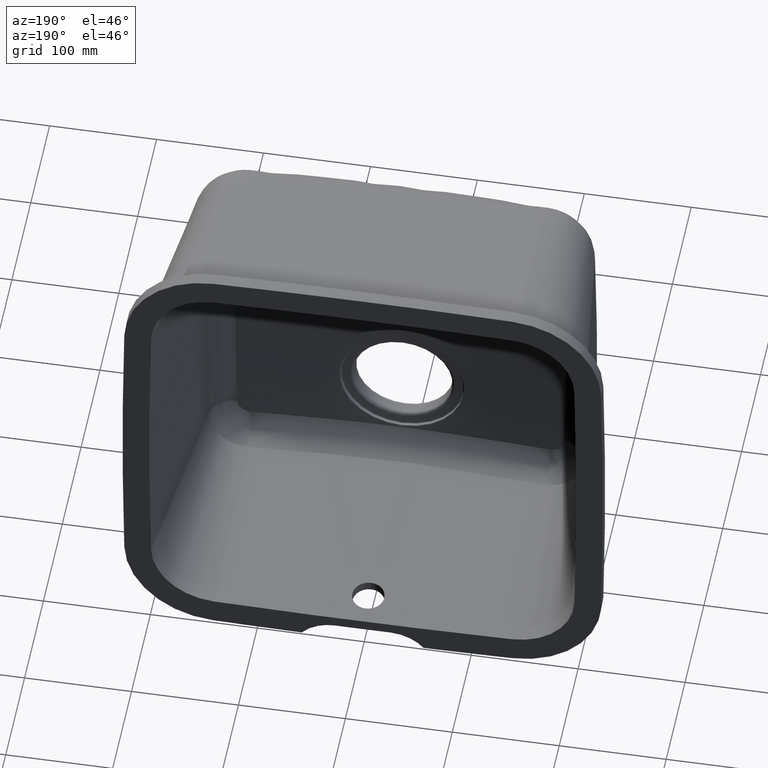
[diagram: clean part render]
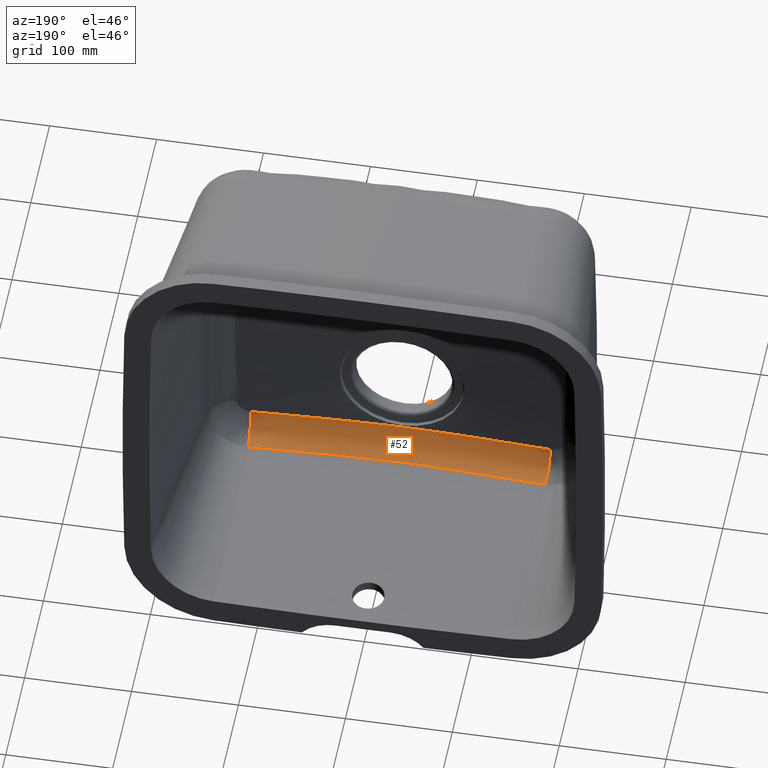
[diagram: same view with one face highlighted and labeled with its STEP entity id]
A machine part, auxiliary view. The second image highlights one B-rep face of the part: STEP entity #52.
In plain terms, the highlighted face is a freeform B-spline surface patch.
Its self-contained STEP definition (entity closure, byte-faithful):
#19 = VERTEX_POINT ( 'NONE', #4301 ) ;
#52 = ADVANCED_FACE ( 'NONE', ( #2300 ), #1901, .F. ) ;
#95 = CARTESIAN_POINT ( 'NONE',  ( -40.83867986021988400, 1.011560829505850200, -153.2749280901548200 ) ) ;
#150 = CARTESIAN_POINT ( 'NONE',  ( 58.87429859057600400, 2.851861469490934100, -174.0353473288779800 ) ) ;
#158 = CARTESIAN_POINT ( 'NONE',  ( -64.14953996516371100, 2.072095009043335400, -152.9574791450795900 ) ) ;
#179 = CARTESIAN_POINT ( 'NONE',  ( 23.65419742322665500, 1.800841630182062400, -174.1398169175155600 ) ) ;
#189 = CARTESIAN_POINT ( 'NONE',  ( -47.25581188564600400, 1.276385992272396400, -153.1891069049507300 ) ) ;
#221 = CARTESIAN_POINT ( 'NONE',  ( 138.8081677294309800, 28.44922701244927400, -175.9066235323146000 ) ) ;
#236 = CARTESIAN_POINT ( 'NONE',  ( 82.19207673572356000, 3.886600302355682300, -173.9063520723077300 ) ) ;
#270 = CARTESIAN_POINT ( 'NONE',  ( 63.63602706564612500, 23.99096099312435700, -176.5840183340366700 ) ) ;
#339 = CARTESIAN_POINT ( 'NONE',  ( -81.03360009508189400, 24.91428714242230700, -176.5033124369285800 ) ) ;
#345 = CARTESIAN_POINT ( 'NONE',  ( 28.91101728318358600, 22.51263801326729200, -176.6605840185063700 ) ) ;
#469 = CIRCLE ( 'NONE', #3248, 25.00000000000000400 ) ;
#494 = CARTESIAN_POINT ( 'NONE',  ( -127.2549304034017700, 27.71090961203639200, -176.0735500679325300 ) ) ;
#510 = CARTESIAN_POINT ( 'NONE',  ( -82.23691743632746000, 3.888882711299178800, -173.9060213529402000 ) ) ;
#523 = CARTESIAN_POINT ( 'NONE',  ( -116.8028911064075400, 5.093137889881473000, -152.1785321694588900 ) ) ;
#528 = CARTESIAN_POINT ( 'NONE',  ( 29.55712835344442300, 1.920224914698769500, -174.1292056590603200 ) ) ;
#534 = CARTESIAN_POINT ( 'NONE',  ( -92.59053483487825500, 25.58793073426490500, -176.4248818934823100 ) ) ;
#545 = CARTESIAN_POINT ( 'NONE',  ( 46.27788787088567800, 23.16550161274789600, -176.6358802995876500 ) ) ;
#552 = CARTESIAN_POINT ( 'NONE',  ( 82.09317167750298000, 3.019377097978279200, -152.7054034717391200 ) ) ;
#562 = CARTESIAN_POINT ( 'NONE',  ( 128.3282111101373200, 5.817971400511065200, -151.9850774388810400 ) ) ;
#606 = CARTESIAN_POINT ( 'NONE',  ( 127.2462298307551400, 27.71035359492195800, -176.0736757777017100 ) ) ;
#609 = ORIENTED_EDGE ( 'NONE', *, *, #1424, .F. ) ;
#617 = CARTESIAN_POINT ( 'NONE',  ( 9.186450360362218100E-016, 0.1642780061502546700, -153.5992849392729300 ) ) ;
#702 = CARTESIAN_POINT ( 'NONE',  ( 5.734494765795124000, 22.05624808998421600, -176.6690318315292200 ) ) ;
#865 = CARTESIAN_POINT ( 'NONE',  ( -117.0081312788031800, 5.773713497490291500, -173.5807801621582800 ) ) ;
#876 = CARTESIAN_POINT ( 'NONE',  ( -93.70274008600687000, 3.695563063449770300, -152.5382285401744300 ) ) ;
#891 = CARTESIAN_POINT ( 'NONE',  ( -41.40017289156658400, 2.231578803073543100, -174.0999515299112100 ) ) ;
#897 = CARTESIAN_POINT ( 'NONE',  ( 29.57475034321622300, 0.6202683076655682900, -153.4126492910388000 ) ) ;
#913 = CARTESIAN_POINT ( 'NONE',  ( 80.98940597597547300, 24.91174477004168300, -176.5035932503067800 ) ) ;
#920 = CARTESIAN_POINT ( 'NONE',  ( 128.2201855927925200, 5.811052669934937900, -151.9870932509621200 ) ) ;
#926 = CARTESIAN_POINT ( 'NONE',  ( 92.55507763745276900, 25.58582901663523400, -176.4251677539454600 ) ) ;
#997 = CARTESIAN_POINT ( 'NONE',  ( 11.53128317371742600, 22.11684405427258000, -176.6684359801439800 ) ) ;
#1021 = CARTESIAN_POINT ( 'NONE',  ( -115.7007552689140700, 26.98549172334475100, -176.2099165886474200 ) ) ;
#1035 = CARTESIAN_POINT ( 'NONE',  ( -57.91458634386840000, 23.70269254859638200, -176.6044680416658800 ) ) ;
#1105 = ORIENTED_EDGE ( 'NONE', *, *, #1292, .F. ) ;
#1184 = CARTESIAN_POINT ( 'NONE',  ( -81.62738438148773000, 2.992891552951847200, -152.7120769881534300 ) ) ;
#1191 = CARTESIAN_POINT ( 'NONE',  ( 47.18037689784990400, 1.273136833211360400, -153.1901204111614700 ) ) ;
#1210 = CARTESIAN_POINT ( 'NONE',  ( -47.25593131239222800, 2.421116578534597600, -174.0814842412725600 ) ) ;
#1224 = CARTESIAN_POINT ( 'NONE',  ( -29.65017364031412600, 1.922323189849676900, -174.1290152886935800 ) ) ;
#1227 = CARTESIAN_POINT ( 'NONE',  ( 46.27795614231391100, 23.16550450467685400, -176.6358801679637900 ) ) ;
#1236 = CARTESIAN_POINT ( 'NONE',  ( -29.00240170724685400, 22.51550456571116900, -176.6605057351984600 ) ) ;
#1242 = CARTESIAN_POINT ( 'NONE',  ( 47.18038420418358200, 2.418537294455840800, -174.0817455845231100 ) ) ;
#1253 = CARTESIAN_POINT ( 'NONE',  ( 93.79581100466560900, 4.489965776503519000, -173.8162281564289100 ) ) ;
#1261 = CARTESIAN_POINT ( 'NONE',  ( 81.63143327839995300, 2.993120327727915300, -152.7120190910008800 ) ) ;
#1280 = CARTESIAN_POINT ( 'NONE',  ( 23.34547167778946900, 0.4453512378437377000, -153.4812086140423700 ) ) ;
#1292 = EDGE_CURVE ( 'NONE', #2635, #19, #4205, .T. ) ;
#1395 = CARTESIAN_POINT ( 'NONE',  ( -46.35196808495348400, 23.16872482040671200, -176.6357202182796900 ) ) ;
#1398 = CARTESIAN_POINT ( 'NONE',  ( -139.8648283158147800, 6.556859341082163600, -151.7698001973026000 ) ) ;
#1424 = EDGE_CURVE ( 'NONE', #4077, #1469, #2943, .T. ) ;
#1437 = ORIENTED_EDGE ( 'NONE', *, *, #2453, .T. ) ;
#1442 = VERTEX_POINT ( 'NONE', #1398 ) ;
#1469 = VERTEX_POINT ( 'NONE', #617 ) ;
#1517 = ORIENTED_EDGE ( 'NONE', *, *, #2894, .F. ) ;
#1584 = CARTESIAN_POINT ( 'NONE',  ( -23.75357054620479500, 1.802654229112316400, -174.1396547912270600 ) ) ;
#1602 = CARTESIAN_POINT ( 'NONE',  ( 40.49022321754021200, 22.92285637727676200, -176.6464181961939100 ) ) ;
#1623 = CARTESIAN_POINT ( 'NONE',  ( 80.98926312022314300, 24.91173670893522600, -176.5035940969168000 ) ) ;
#1632 = CARTESIAN_POINT ( 'NONE',  ( 92.55494819653915800, 25.58582135690593900, -176.4251687836307700 ) ) ;
#1747 = CARTESIAN_POINT ( 'NONE',  ( -40.56961378925208800, 22.92604251875285800, -176.6462873201404600 ) ) ;
#1845 = CARTESIAN_POINT ( 'NONE',  ( -116.5724604084844300, 5.078653345951883200, -152.1823772570121500 ) ) ;
#1873 = CARTESIAN_POINT ( 'NONE',  ( -93.27659092042786400, 3.670339593163843600, -152.5445998136062500 ) ) ;
#1876 = ORIENTED_EDGE ( 'NONE', *, *, #3730, .F. ) ;
#1888 = CARTESIAN_POINT ( 'NONE',  ( -46.66746937492824500, 1.251260125438407700, -153.1969944103730100 ) ) ;
#1901 =( BOUNDED_SURFACE ( )  B_SPLINE_SURFACE ( 3, 2, ( 
 ( #3297, #4012, #2282 ),
 ( #494, #3982, #1911 ),
 ( #4343, #865, #523 ),
 ( #534, #2310, #876 ),
 ( #4329, #510, #4368 ),
 ( #2632, #1922, #2994 ),
 ( #3323, #2256, #2613 ),
 ( #3313, #1210, #189 ),
 ( #2621, #891, #3335 ),
 ( #1236, #1224, #3692 ),
 ( #3674, #1584, #1952 ),
 ( #2293, #4076, #3370 ),
 ( #2937, #2287, #2625 ),
 ( #3683, #3637, #2262 ),
 ( #3974, #3697, #4015 ),
 ( #3328, #179, #2615 ),
 ( #3666, #528, #897 ),
 ( #1602, #2984, #1944 ),
 ( #1227, #1242, #1191 ),
 ( #1961, #150, #2586 ),
 ( #2941, #2298, #2658 ),
 ( #913, #236, #552 ),
 ( #926, #1253, #2313 ),
 ( #3375, #3008, #3359 ),
 ( #2670, #4385, #562 ),
 ( #221, #3708, #3025 ) ),
 .UNSPECIFIED., .F., .F., .T. ) 
 B_SPLINE_SURFACE_WITH_KNOTS ( ( 4, 2, 2, 2, 2, 2, 2, 2, 2, 2, 2, 2, 4 ),
 ( 3, 3 ),
 ( -3.441691376337985300E-015, 0.03458634299102859200, 0.06917268598206062500, 0.08646585747757665200, 0.1037590289730926700, 0.1210522004686086800, 0.1383453719641246900, 0.1556385434596407300, 0.1729317149551567500, 0.1902248864506727600, 0.2075180579461887700, 0.2421044009372208000, 0.2766907439282528200 ),
 ( 0.0000000000000000000, 1.000000000000000000 ),
 .UNSPECIFIED. ) 
 GEOMETRIC_REPRESENTATION_ITEM ( )  RATIONAL_B_SPLINE_SURFACE ( (
 ( 1.000000000000000000, 0.7581613193618773600, 1.000000000000000000),
 ( 1.000000000000000000, 0.7587617439914943200, 1.000000000000000000),
 ( 1.000000000000000000, 0.7594761446273320400, 1.000000000000000000),
 ( 1.000000000000000000, 0.7612942553376972300, 1.000000000000000000),
 ( 1.000000000000000000, 0.7624050924904380900, 1.000000000000000000),
 ( 1.000000000000000000, 0.7644804515009976400, 1.000000000000000000),
 ( 1.000000000000000000, 0.7652407591866997600, 1.000000000000000000),
 ( 1.000000000000000000, 0.7668566985363453000, 1.000000000000000000),
 ( 1.000000000000000000, 0.7677155256353941400, 1.000000000000000000),
 ( 1.000000000000000000, 0.7693587876268325200, 1.000000000000000000),
 ( 1.000000000000000000, 0.7701406881104153600, 1.000000000000000000),
 ( 1.000000000000000000, 0.7712804987138828200, 1.000000000000000000),
 ( 1.000000000000000000, 0.7716223977765395100, 1.000000000000000000),
 ( 1.000000000000000000, 0.7716267470209057200, 1.000000000000000000),
 ( 1.000000000000000000, 0.7712887523926480500, 1.000000000000000000),
 ( 1.000000000000000000, 0.7701528391308664100, 1.000000000000000000),
 ( 1.000000000000000000, 0.7693713238027041200, 1.000000000000000000),
 ( 1.000000000000000000, 0.7677273462469430500, 1.000000000000000000),
 ( 1.000000000000000000, 0.7668674853762375000, 1.000000000000000000),
 ( 1.000000000000000000, 0.7652493982258926600, 1.000000000000000000),
 ( 1.000000000000000000, 0.7644879605349636000, 1.000000000000000000),
 ( 1.000000000000000000, 0.7624096252786002300, 1.000000000000000000),
 ( 1.000000000000000000, 0.7612973446257083100, 1.000000000000000000),
 ( 1.000000000000000000, 0.7594772165880858700, 1.000000000000000000),
 ( 1.000000000000000000, 0.7587621967233254500, 1.000000000000000000),
 ( 1.000000000000000000, 0.7581613193618770300, 1.000000000000000000) ) ) 
 REPRESENTATION_ITEM ( '' )  SURFACE ( )  );
#1911 = CARTESIAN_POINT ( 'NONE',  ( -128.3368456472353200, 5.818524419096338100, -151.9849163425002100 ) ) ;
#1922 = CARTESIAN_POINT ( 'NONE',  ( -64.76579031151165100, 3.098214439703646800, -174.0070466122735700 ) ) ;
#1944 = CARTESIAN_POINT ( 'NONE',  ( 41.32757669195524400, 1.030488705728151300, -153.2685799689907900 ) ) ;
#1952 = CARTESIAN_POINT ( 'NONE',  ( -23.77330056330961500, 0.4556384154249503700, -153.4770901610666300 ) ) ;
#1961 = CARTESIAN_POINT ( 'NONE',  ( 57.85092082273293100, 23.69955718349757500, -176.6046797411018800 ) ) ;
#1966 = CARTESIAN_POINT ( 'NONE',  ( 115.6834670457424900, 26.98440416756657000, -176.2101209004599700 ) ) ;
#1997 = CARTESIAN_POINT ( 'NONE',  ( 11.67323527396237300, 0.2229469018515394500, -153.5728233414354500 ) ) ;
#2015 = CARTESIAN_POINT ( 'NONE',  ( 138.2550340701563400, 31.49596059757795500, -151.0991355978976600 ) ) ;
#2053 = CIRCLE ( 'NONE', #4436, 25.00000000000000700 ) ;
#2079 = CARTESIAN_POINT ( 'NONE',  ( -127.2548097427278700, 27.71090189996709800, -176.0735518111507600 ) ) ;
#2093 = DIRECTION ( 'NONE',  ( 0.06402964364024431300, 0.9979479970095152000, 0.0000000000000000000 ) ) ;
#2100 = CARTESIAN_POINT ( 'NONE',  ( -11.64066362396290400, 22.11838393861080500, -176.6684155974710700 ) ) ;
#2256 = CARTESIAN_POINT ( 'NONE',  ( -58.93914355512277600, 2.854487620874623500, -174.0350510882988400 ) ) ;
#2262 = CARTESIAN_POINT ( 'NONE',  ( 5.881924463071820600, 0.1638772406873480200, -153.5994611250322900 ) ) ;
#2282 = CARTESIAN_POINT ( 'NONE',  ( -139.8648283158113100, 6.556859341081966400, -151.7698001973035100 ) ) ;
#2287 = CARTESIAN_POINT ( 'NONE',  ( -5.993723171444641700, 1.602119694415724800, -174.1574694623052200 ) ) ;
#2293 = CARTESIAN_POINT ( 'NONE',  ( -11.64125214693351200, 22.11839185290645900, -176.6684154996208100 ) ) ;
#2298 = CARTESIAN_POINT ( 'NONE',  ( 64.70605222082441800, 3.095638054153957000, -174.0073561717024400 ) ) ;
#2300 = FACE_OUTER_BOUND ( 'NONE', #3593, .T. ) ;
#2310 = CARTESIAN_POINT ( 'NONE',  ( -93.83136462013538900, 4.491869949599186300, -173.8159092414840600 ) ) ;
#2313 = CARTESIAN_POINT ( 'NONE',  ( 93.66727511842209700, 3.693461344832901400, -152.5387598624316500 ) ) ;
#2323 = CARTESIAN_POINT ( 'NONE',  ( 40.84137550176682700, 1.011662150994495000, -153.2748936519134300 ) ) ;
#2337 = CARTESIAN_POINT ( 'NONE',  ( 9.186450360362218100E-016, 0.1642780061502546700, -153.5992849392729300 ) ) ;
#2426 = CARTESIAN_POINT ( 'NONE',  ( -92.59012060684547400, 25.58790619407652000, -176.4248852201526700 ) ) ;
#2439 = CARTESIAN_POINT ( 'NONE',  ( -138.8081677294250900, 28.44922701244892600, -175.9066235323140600 ) ) ;
#2453 = EDGE_CURVE ( 'NONE', #4077, #19, #469, .T. ) ;
#2474 = DIRECTION ( 'NONE',  ( 0.9978447255611983000, -0.06402301760957565500, -0.01438599617200658400 ) ) ;
#2492 = CARTESIAN_POINT ( 'NONE',  ( -138.2550340701540100, 31.49596059757777400, -151.0991355978965500 ) ) ;
#2534 = CARTESIAN_POINT ( 'NONE',  ( -58.32289988813701600, 1.781548486462674300, -153.0383837180809500 ) ) ;
#2586 = CARTESIAN_POINT ( 'NONE',  ( 58.85140269888561400, 1.807189512229226700, -153.0310759335777400 ) ) ;
#2593 = CARTESIAN_POINT ( 'NONE',  ( -139.8648283158147800, 6.556859341082163600, -151.7698001973026000 ) ) ;
#2613 = CARTESIAN_POINT ( 'NONE',  ( -58.91611235486924900, 1.810355661595289800, -153.0301794726537400 ) ) ;
#2615 = CARTESIAN_POINT ( 'NONE',  ( 23.67391750485038000, 0.4530821259049683200, -153.4781055465402600 ) ) ;
#2621 = CARTESIAN_POINT ( 'NONE',  ( -40.57028855214546300, 22.92606939465594400, -176.6462862255855600 ) ) ;
#2625 = CARTESIAN_POINT ( 'NONE',  ( -6.002030538852941400, 0.1646828425528361300, -153.5991069638508600 ) ) ;
#2632 = CARTESIAN_POINT ( 'NONE',  ( -63.69544959692183300, 23.99401472361698100, -176.5837811560956800 ) ) ;
#2635 = VERTEX_POINT ( 'NONE', #2439 ) ;
#2658 = CARTESIAN_POINT ( 'NONE',  ( 64.66992742905432600, 2.098599726595845400, -152.9502350381845900 ) ) ;
#2670 = CARTESIAN_POINT ( 'NONE',  ( 127.2462777800396300, 27.71035665651299600, -176.0736750845840100 ) ) ;
#2676 = CARTESIAN_POINT ( 'NONE',  ( 29.17877231168551000, 0.6084489924350576800, -153.4171219386058200 ) ) ;
#2708 = CARTESIAN_POINT ( 'NONE',  ( 57.85080793332206600, 23.69955171547834600, -176.6046800978817500 ) ) ;
#2728 = DIRECTION ( 'NONE',  ( 0.9978447255611965200, 0.06402301760957175600, 0.01438599617214774000 ) ) ;
#2762 = DIRECTION ( 'NONE',  ( -0.06402964364024098200, 0.9979479970095153100, 0.0000000000000000000 ) ) ;
#2781 = CARTESIAN_POINT ( 'NONE',  ( 23.11952911827173900, 22.34545344025328400, -176.6642594534111200 ) ) ;
#2793 = CARTESIAN_POINT ( 'NONE',  ( 40.49018721758799400, 22.92285515144636000, -176.6464182357076100 ) ) ;
#2806 = CARTESIAN_POINT ( 'NONE',  ( -5.850650594381857400, 22.05704727145692300, -176.6690218920495300 ) ) ;
#2894 = EDGE_CURVE ( 'NONE', #1442, #2635, #2053, .T. ) ;
#2918 = CARTESIAN_POINT ( 'NONE',  ( -29.17776826905219400, 0.6084224066930472600, -153.4171326184181500 ) ) ;
#2934 = CARTESIAN_POINT ( 'NONE',  ( -23.34562797420990400, 0.4453646063201288100, -153.4812036718476500 ) ) ;
#2937 = CARTESIAN_POINT ( 'NONE',  ( -5.851187993905972100, 22.05705051375487400, -176.6690218516884800 ) ) ;
#2941 = CARTESIAN_POINT ( 'NONE',  ( 63.63615229988457900, 23.99096739761452200, -176.5840178459031900 ) ) ;
#2943 = B_SPLINE_CURVE_WITH_KNOTS ( 'NONE', 3,
 ( #4379, #920, #4416, #3369, #1261, #3715, #4050, #4395, #2323, #2676, #1280, #1997, #4404, #2337 ),
 .UNSPECIFIED., .F., .F.,
 ( 4, 2, 2, 2, 2, 2, 4 ),
 ( 0.0000000000000000000, 0.03500744715501236800, 0.07001489431002473600, 0.08751861788753090300, 0.1050223414650370800, 0.1225260650425432400, 0.1400297886200494200 ),
 .UNSPECIFIED. ) ;
#2984 = CARTESIAN_POINT ( 'NONE',  ( 41.31902522166471000, 2.229096799130004100, -174.1001915268505200 ) ) ;
#2994 = CARTESIAN_POINT ( 'NONE',  ( -64.72952688922880800, 2.101647052282550600, -152.9494046742805700 ) ) ;
#3008 = CARTESIAN_POINT ( 'NONE',  ( 116.9906995749459600, 5.772687190879579200, -173.5809987895390500 ) ) ;
#3025 = CARTESIAN_POINT ( 'NONE',  ( 139.8648283158171900, 6.556859341082354600, -151.7698001973040200 ) ) ;
#3136 = CARTESIAN_POINT ( 'NONE',  ( -63.69485005985438200, 23.99398393690551100, -176.5837835396679600 ) ) ;
#3248 = AXIS2_PLACEMENT_3D ( 'NONE', #2015, #2728, #2762 ) ;
#3289 = CARTESIAN_POINT ( 'NONE',  ( -138.8081677294250900, 28.44922701244892600, -175.9066235323140600 ) ) ;
#3297 = CARTESIAN_POINT ( 'NONE',  ( -138.8081677294250900, 28.44922701244888700, -175.9066235323140600 ) ) ;
#3313 = CARTESIAN_POINT ( 'NONE',  ( -46.35263248143212400, 23.16875366322598100, -176.6357187960723500 ) ) ;
#3323 = CARTESIAN_POINT ( 'NONE',  ( -57.91521312801148000, 23.70272333337554500, -176.6044659739480900 ) ) ;
#3328 = CARTESIAN_POINT ( 'NONE',  ( 23.11940758724325600, 22.34544979702469500, -176.6642595353957000 ) ) ;
#3335 = CARTESIAN_POINT ( 'NONE',  ( -41.40862988497091400, 1.033701723393452500, -153.2675141625609900 ) ) ;
#3359 = CARTESIAN_POINT ( 'NONE',  ( 116.7854936423065300, 5.092041495817384500, -152.1788239293361200 ) ) ;
#3369 = CARTESIAN_POINT ( 'NONE',  ( 93.28014952613038700, 3.670549953204786900, -152.5445467224190600 ) ) ;
#3370 = CARTESIAN_POINT ( 'NONE',  ( -11.94040196748088600, 0.2260241816780828300, -153.5714433349390300 ) ) ;
#3375 = CARTESIAN_POINT ( 'NONE',  ( 115.6835469466267500, 26.98440916674889300, -176.2101199836944000 ) ) ;
#3593 = EDGE_LOOP ( 'NONE', ( #1437, #1105, #1517, #1876, #609 ) ) ;
#3629 = CARTESIAN_POINT ( 'NONE',  ( -128.2190564754521600, 5.810980353139611600, -151.9871143206826800 ) ) ;
#3637 = CARTESIAN_POINT ( 'NONE',  ( 5.873750223620342000, 1.601579024251667400, -174.1575173646898500 ) ) ;
#3666 = CARTESIAN_POINT ( 'NONE',  ( 28.91095845932632700, 22.51263597885079500, -176.6605840859423900 ) ) ;
#3674 = CARTESIAN_POINT ( 'NONE',  ( -23.21684286916746100, 22.34800608693041500, -176.6642048813012600 ) ) ;
#3683 = CARTESIAN_POINT ( 'NONE',  ( 5.734100417641007800, 22.05624491221915000, -176.6690318710885800 ) ) ;
#3692 = CARTESIAN_POINT ( 'NONE',  ( -29.66777335076916700, 0.6231368942398191100, -153.4115801601758400 ) ) ;
#3697 = CARTESIAN_POINT ( 'NONE',  ( 11.81561805572540400, 1.641668540766277000, -174.1539828823834200 ) ) ;
#3708 = CARTESIAN_POINT ( 'NONE',  ( 140.1364672610926000, 7.152348206731600700, -173.2614285303121200 ) ) ;
#3715 = CARTESIAN_POINT ( 'NONE',  ( 64.15357317648432900, 2.072299765269320500, -152.9574230392570400 ) ) ;
#3730 = EDGE_CURVE ( 'NONE', #1469, #1442, #4257, .T. ) ;
#3829 = CARTESIAN_POINT ( 'NONE',  ( -23.21618819272236300, 22.34798934143860200, -176.6642052356527000 ) ) ;
#3834 = CARTESIAN_POINT ( 'NONE',  ( 9.186450360362218100E-016, 0.1642780061502546700, -153.5992849392729300 ) ) ;
#3866 = CARTESIAN_POINT ( 'NONE',  ( -5.839678026755351900, 0.1642780061502431300, -153.5992849392727600 ) ) ;
#3920 = CARTESIAN_POINT ( 'NONE',  ( -11.67660114234651500, 0.2230006483049139200, -153.5728006372359900 ) ) ;
#3949 = CARTESIAN_POINT ( 'NONE',  ( 139.8648283158170800, 6.556859341082315500, -151.7698001973027100 ) ) ;
#3974 = CARTESIAN_POINT ( 'NONE',  ( 11.53099392352012100, 22.11683959377849400, -176.6684360462089400 ) ) ;
#3982 = CARTESIAN_POINT ( 'NONE',  ( -128.5773421389083400, 6.453061025638977100, -173.4358519590705900 ) ) ;
#4012 = CARTESIAN_POINT ( 'NONE',  ( -140.1364672610867200, 7.152348206731232900, -173.2614285303115500 ) ) ;
#4015 = CARTESIAN_POINT ( 'NONE',  ( 11.82747086219185700, 0.2244719221643824100, -153.5721168714484300 ) ) ;
#4050 = CARTESIAN_POINT ( 'NONE',  ( 58.32679905377570900, 1.781736399206660800, -153.0383298841906900 ) ) ;
#4076 = CARTESIAN_POINT ( 'NONE',  ( -11.92843890524782100, 1.642718116209229300, -174.1538902675655700 ) ) ;
#4077 = VERTEX_POINT ( 'NONE', #3949 ) ;
#4090 = CARTESIAN_POINT ( 'NONE',  ( 138.8081677294309200, 28.44922701244925600, -175.9066235323142800 ) ) ;
#4169 = CARTESIAN_POINT ( 'NONE',  ( -29.00173174013001500, 22.51548371510048000, -176.6605062935843500 ) ) ;
#4205 = B_SPLINE_CURVE_WITH_KNOTS ( 'NONE', 3,
 ( #3289, #2079, #1021, #2426, #339, #3136, #1035, #1395, #1747, #4169, #3829, #2100, #2806, #702, #997, #2781, #345, #2793, #545, #2708, #270, #1623, #1632, #1966, #606, #4090 ),
 .UNSPECIFIED., .F., .F.,
 ( 4, 2, 2, 2, 2, 2, 2, 2, 2, 2, 2, 2, 4 ),
 ( 2.775557561562891400E-017, 0.03472454487902614700, 0.06944908975805226500, 0.08681136219756532800, 0.1041736346370783800, 0.1215359070765914400, 0.1388981795161045000, 0.1562604519556175500, 0.1736227243951306300, 0.1909849968346436800, 0.2083472692741567300, 0.2430718141531828800, 0.2777963590322090100 ),
 .UNSPECIFIED. ) ;
#4257 = B_SPLINE_CURVE_WITH_KNOTS ( 'NONE', 3,
 ( #3834, #3866, #3920, #2934, #2918, #95, #1888, #2534, #158, #1184, #1873, #1845, #3629, #2593 ),
 .UNSPECIFIED., .F., .F.,
 ( 4, 2, 2, 2, 2, 2, 4 ),
 ( 0.1400297886200494200, 0.1575494702543013800, 0.1750691518885533200, 0.1925888335228052900, 0.2101085151570572500, 0.2451478784255611300, 0.2801872416940650000 ),
 .UNSPECIFIED. ) ;
#4301 = CARTESIAN_POINT ( 'NONE',  ( 138.8081677294309200, 28.44922701244925600, -175.9066235323142800 ) ) ;
#4329 = CARTESIAN_POINT ( 'NONE',  ( -81.03410133188492600, 24.91431581796460300, -176.5033093126812700 ) ) ;
#4343 = CARTESIAN_POINT ( 'NONE',  ( -115.7009756743069600, 26.98550556180017800, -176.2099140121224800 ) ) ;
#4368 = CARTESIAN_POINT ( 'NONE',  ( -82.13792040720424800, 3.021948146532700700, -152.7047603046711400 ) ) ;
#4379 = CARTESIAN_POINT ( 'NONE',  ( 139.8648283158170800, 6.556859341082315500, -151.7698001973027100 ) ) ;
#4385 = CARTESIAN_POINT ( 'NONE',  ( 128.5686913305489200, 6.452537680683869700, -173.4359824696249200 ) ) ;
#4395 = CARTESIAN_POINT ( 'NONE',  ( 46.67069965379060600, 1.251396588216434600, -153.1969512241099400 ) ) ;
#4404 = CARTESIAN_POINT ( 'NONE',  ( 5.834358871118087800, 0.1642780061502431000, -153.5992849392727900 ) ) ;
#4416 = CARTESIAN_POINT ( 'NONE',  ( 116.5745653735025900, 5.078785368991281000, -152.1823422859894200 ) ) ;
#4436 = AXIS2_PLACEMENT_3D ( 'NONE', #2492, #2474, #2093 ) ;